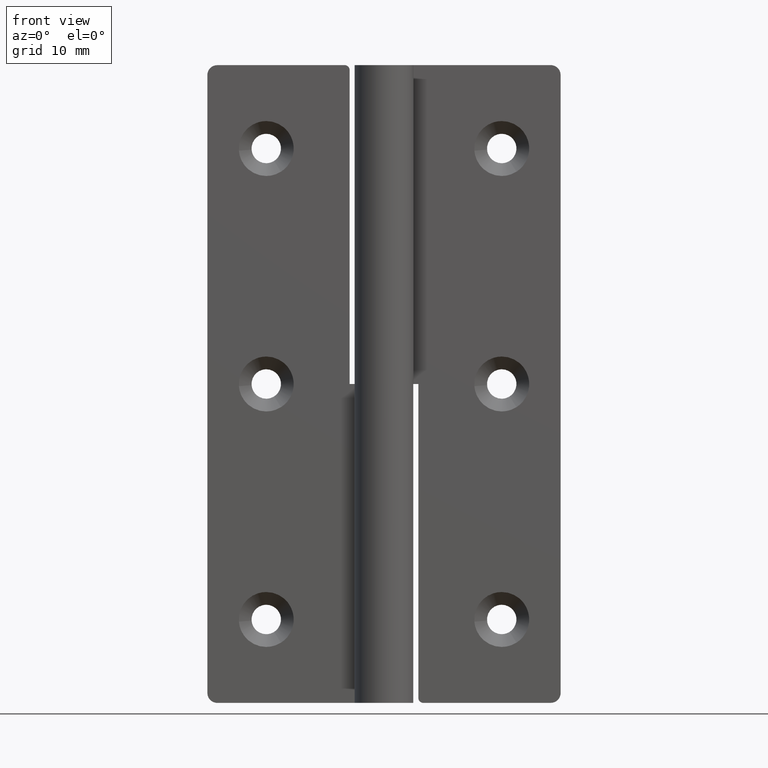
[diagram: clean part render]
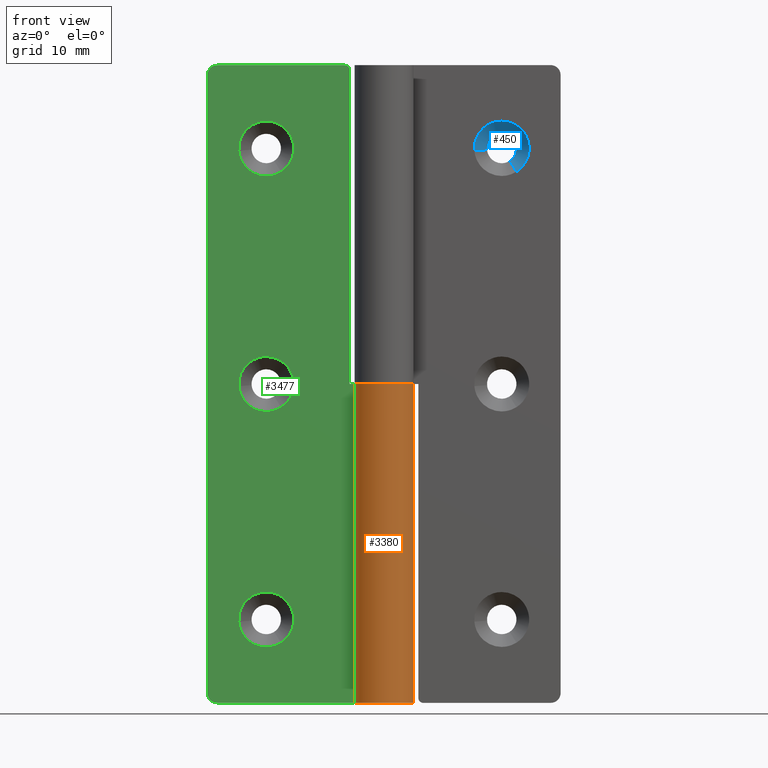
[diagram: same view with three faces highlighted in distinct colors, each labeled with its STEP entity id]
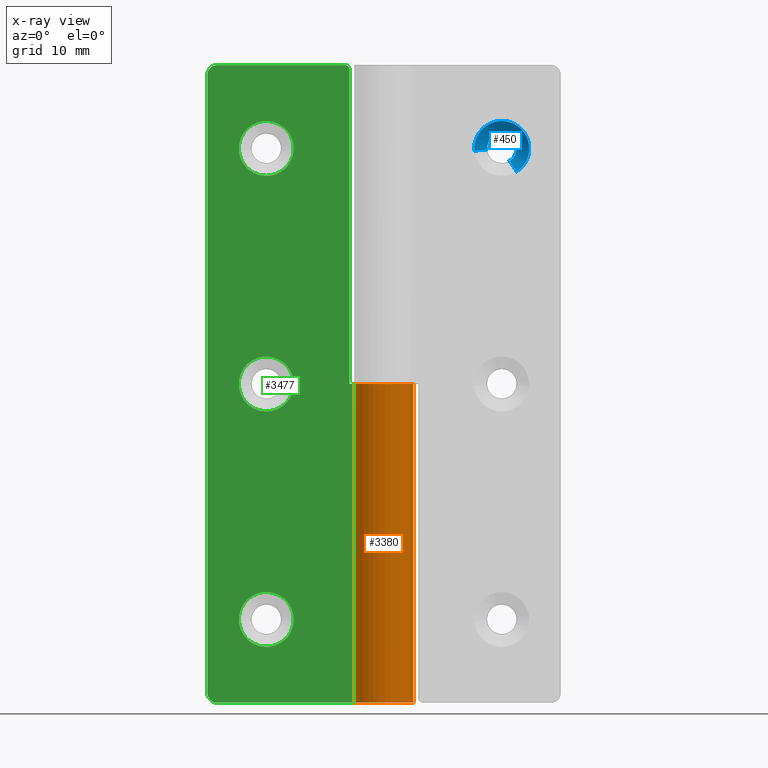
[diagram: x-ray of the same camera — body ghosted, the three highlighted faces saturated]
A machine part, front view with three faces highlighted in distinct colors.
The next image is the same camera in x-ray (body ghosted, the three faces saturated) — at least one of them is partly hidden behind the body in this view.
Their STEP definitions:

[orange] entity #3380 — the highlighted face is a freeform B-spline surface patch.
#3055=CARTESIAN_POINT('',(-2.626308055046285,1.450000000000000,32.500000000000000));
#3056=VERTEX_POINT('',#3055);
#3062=CARTESIAN_POINT('',(0.0,3.0,32.500000000000000));
#3063=VERTEX_POINT('',#3062);
#3064=CARTESIAN_POINT('',(0.0,3.0,32.500000000000000));
#3065=CARTESIAN_POINT('',(2.290597388138798,3.000000646862393,32.500000000000007));
#3066=CARTESIAN_POINT('',(2.894027959728419,0.790315417176416,32.500000000000000));
#3067=CARTESIAN_POINT('',(3.497458531318040,-1.419369812509560,32.500000000000007));
#3068=CARTESIAN_POINT('',(1.524794322195784,-2.583600915660028,32.500000000000000));
#3069=CARTESIAN_POINT('',(-0.447869886926470,-3.747832018810494,32.500000000000007));
#3070=CARTESIAN_POINT('',(-2.090650190973659,-2.151552395604616,32.500000000000000));
#3071=CARTESIAN_POINT('',(-3.733430495020849,-0.555272772398737,32.500000000000007));
#3072=CARTESIAN_POINT('',(-2.626308055046285,1.450000000000000,32.500000000000000));
#3080=(BOUNDED_CURVE()B_SPLINE_CURVE(2,(#3064,#3065,#3066,#3067,#3068,#3069,#3070,#3071,#3072),.UNSPECIFIED.,.F.,.U.)B_SPLINE_CURVE_WITH_KNOTS((3,2,2,2,3),(0.0,0.250000000000000,0.500000000000000,0.750000000000000,1.0),.UNSPECIFIED.)CURVE()GEOMETRIC_REPRESENTATION_ITEM()RATIONAL_B_SPLINE_CURVE((1.0,0.794807548154990,1.0,0.794807548154990,1.0,0.794807548154990,1.0,0.794807548154990,1.0))REPRESENTATION_ITEM(''));
#3081=EDGE_CURVE('',#3063,#3056,#3080,.T.);
#3311=CARTESIAN_POINT('',(-2.626308055046285,1.450000000000000,0.0));
#3312=VERTEX_POINT('',#3311);
#3313=CARTESIAN_POINT('',(-2.626308055046285,1.450000000000000,0.0));
#3314=CARTESIAN_POINT('',(-2.626308055046285,1.450000000000000,32.500000000000000));
#3315=QUASI_UNIFORM_CURVE('',1,(#3313,#3314),.UNSPECIFIED.,.F.,.U.);
#3316=EDGE_CURVE('',#3312,#3056,#3315,.T.);
#3328=CARTESIAN_POINT('',(-0.026179597768584,2.999884769230590,-0.812500000000001));
#3329=CARTESIAN_POINT('',(-0.026179597768584,2.999884769230590,33.332812500000003));
#3330=CARTESIAN_POINT('',(3.591479420233541,3.031455601192738,-0.812500000000001));
#3331=CARTESIAN_POINT('',(3.591479420233541,3.031455601192738,33.332812499999996));
#3332=CARTESIAN_POINT('',(2.952894411097322,-0.529536209254089,-0.812500000000001));
#3333=CARTESIAN_POINT('',(2.952894411097322,-0.529536209254089,33.332812500000003));
#3334=CARTESIAN_POINT('',(2.314309401961106,-4.090528019700916,-0.812500000000001));
#3335=CARTESIAN_POINT('',(2.314309401961106,-4.090528019700916,33.332812499999996));
#3336=CARTESIAN_POINT('',(-1.066951929793866,-2.803855841428039,-0.812500000000001));
#3337=CARTESIAN_POINT('',(-1.066951929793866,-2.803855841428039,33.332812500000003));
#3338=CARTESIAN_POINT('',(-4.448213261548839,-1.517183663155162,-0.812500000000001));
#3339=CARTESIAN_POINT('',(-4.448213261548839,-1.517183663155162,33.332812499999996));
#3340=CARTESIAN_POINT('',(-2.557919640422113,1.567495171649279,-0.812500000000001));
#3341=CARTESIAN_POINT('',(-2.557919640422113,1.567495171649279,33.332812500000003));
#3349=(BOUNDED_SURFACE()B_SPLINE_SURFACE(1,2,((#3328,#3330,#3332,#3334,#3336,#3338,#3340),(#3329,#3331,#3333,#3335,#3337,#3339,#3341)),.UNSPECIFIED.,.F.,.F.,.U.)B_SPLINE_SURFACE_WITH_KNOTS((2,2),(3,2,2,3),(0.0,34.145312500000010),(0.0,5.638244632744899,11.276489265489801,16.914733898234690),.UNSPECIFIED.)GEOMETRIC_REPRESENTATION_ITEM()RATIONAL_B_SPLINE_SURFACE(((1.0,0.638320090924328,1.0,0.638320090924328,1.0,0.638320090924328,1.0),(1.0,0.638320090924328,1.0,0.638320090924328,1.0,0.638320090924328,1.0)))REPRESENTATION_ITEM('')SURFACE());
#3350=CARTESIAN_POINT('',(0.0,3.0,0.0));
#3351=VERTEX_POINT('',#3350);
#3352=CARTESIAN_POINT('',(0.0,3.0,0.0));
#3353=CARTESIAN_POINT('',(0.0,3.0,32.500000000000000));
#3354=QUASI_UNIFORM_CURVE('',1,(#3352,#3353),.UNSPECIFIED.,.F.,.U.);
#3355=EDGE_CURVE('',#3351,#3063,#3354,.T.);
#3356=ORIENTED_EDGE('',*,*,#3355,.T.);
#3357=ORIENTED_EDGE('',*,*,#3081,.T.);
#3358=ORIENTED_EDGE('',*,*,#3316,.F.);
#3359=CARTESIAN_POINT('',(0.0,3.0,0.0));
#3360=CARTESIAN_POINT('',(2.290597388138794,3.000000646862389,0.0));
#3361=CARTESIAN_POINT('',(2.894027959728418,0.790315417176417,0.0));
#3362=CARTESIAN_POINT('',(3.497458531318041,-1.419369812509558,0.0));
#3363=CARTESIAN_POINT('',(1.524794322195787,-2.583600915660025,0.0));
#3364=CARTESIAN_POINT('',(-0.447869886926467,-3.747832018810492,0.0));
#3365=CARTESIAN_POINT('',(-2.090650190973657,-2.151552395604612,0.0));
#3366=CARTESIAN_POINT('',(-3.733430495020845,-0.555272772398734,0.0));
#3367=CARTESIAN_POINT('',(-2.626308055046285,1.450000000000000,0.0));
#3375=(BOUNDED_CURVE()B_SPLINE_CURVE(2,(#3359,#3360,#3361,#3362,#3363,#3364,#3365,#3366,#3367),.UNSPECIFIED.,.F.,.U.)B_SPLINE_CURVE_WITH_KNOTS((3,2,2,2,3),(0.0,0.250000000000000,0.500000000000000,0.750000000000000,1.0),.UNSPECIFIED.)CURVE()GEOMETRIC_REPRESENTATION_ITEM()RATIONAL_B_SPLINE_CURVE((1.0,0.794807548154990,1.0,0.794807548154990,1.0,0.794807548154990,1.0,0.794807548154990,1.0))REPRESENTATION_ITEM(''));
#3376=EDGE_CURVE('',#3351,#3312,#3375,.T.);
#3377=ORIENTED_EDGE('',*,*,#3376,.F.);
#3378=EDGE_LOOP('',(#3356,#3357,#3358,#3377));
#3379=FACE_OUTER_BOUND('',#3378,.T.);
#3380=ADVANCED_FACE('',(#3379),#3349,.T.);

[blue] entity #450 — the highlighted face is a freeform B-spline surface patch.
#314=CARTESIAN_POINT('',(12.789296039222011,2.832500012218953,55.262838728542732));
#315=CARTESIAN_POINT('',(13.532107303791166,2.832500012218953,55.736744598812450));
#316=CARTESIAN_POINT('',(13.462976186956260,2.832500012218953,56.615138722957226));
#317=CARTESIAN_POINT('',(13.347837463999028,2.832500012218954,58.078114909913495));
#318=CARTESIAN_POINT('',(11.884861277042770,2.832500012218953,57.962976186956261));
#319=CARTESIAN_POINT('',(10.421885090086510,2.832500012218954,57.847837463999035));
#320=CARTESIAN_POINT('',(10.537023813043740,2.832500012218953,56.384861277042774));
#321=CARTESIAN_POINT('',(13.523899382782032,1.466687499694526,54.111404081244530));
#322=CARTESIAN_POINT('',(14.958050286055572,1.466687499694526,55.026377459183465));
#323=CARTESIAN_POINT('',(14.824578355321460,1.466687499694526,56.722299137623672));
#324=CARTESIAN_POINT('',(14.602279217697788,1.466687499694527,59.546877492945136));
#325=CARTESIAN_POINT('',(11.777700862376330,1.466687499694526,59.324578355321457));
#326=CARTESIAN_POINT('',(8.953122507054868,1.466687499694527,59.102279217697784));
#327=CARTESIAN_POINT('',(9.175421644678542,1.466687499694526,56.277700862376328));
#335=(BOUNDED_SURFACE()B_SPLINE_SURFACE(2,1,((#314,#321),(#315,#322),(#316,#323),(#317,#324),(#318,#325),(#319,#326),(#320,#327)),.UNSPECIFIED.,.F.,.F.,.U.)B_SPLINE_SURFACE_WITH_KNOTS((3,2,2,3),(2,2),(0.0,3.192182395695130,7.886568271717382,12.580954147739630),(0.0,1.0),.UNSPECIFIED.)GEOMETRIC_REPRESENTATION_ITEM()RATIONAL_B_SPLINE_SURFACE(((0.872532871172386,0.872532871172386),(0.800832611206852,0.800832611206852),(1.0,1.0),(0.707106781186548,0.707106781186548),(1.0,1.0),(0.707106781186548,0.707106781186548),(1.0,1.0)))REPRESENTATION_ITEM('')SURFACE());
#336=CARTESIAN_POINT('',(13.489514289519180,2.800000011920930,56.677051352206547));
#337=VERTEX_POINT('',#336);
#338=CARTESIAN_POINT('',(12.806776190298001,2.800000011913452,55.235439926776642));
#339=VERTEX_POINT('',#338);
#340=CARTESIAN_POINT('',(13.489514289519180,2.800000011920930,56.677051352206547));
#341=CARTESIAN_POINT('',(13.500000000000002,2.800000011920930,56.588836179701623));
#342=CARTESIAN_POINT('',(13.500000000000000,2.800000011920930,56.500000000000000));
#343=CARTESIAN_POINT('',(13.500000000000004,2.800000011920929,55.677709516170253));
#344=CARTESIAN_POINT('',(12.806776190298001,2.800000011913451,55.235439926776642));
#352=(BOUNDED_CURVE()B_SPLINE_CURVE(2,(#340,#341,#342,#343,#344),.UNSPECIFIED.,.F.,.U.)B_SPLINE_CURVE_WITH_KNOTS((3,2,3),(0.229562473465401,0.250000000000000,0.407950112597462),.UNSPECIFIED.)CURVE()GEOMETRIC_REPRESENTATION_ITEM()RATIONAL_B_SPLINE_CURVE((0.956026754089407,0.976055948274784,1.0,0.814949932437528,0.863729296936340))REPRESENTATION_ITEM(''));
#353=EDGE_CURVE('',#337,#339,#352,.T.);
#354=ORIENTED_EDGE('',*,*,#353,.T.);
#355=CARTESIAN_POINT('',(13.505982228261910,1.499999999987748,54.139487853243480));
#356=VERTEX_POINT('',#355);
#357=CARTESIAN_POINT('',(12.806776190298001,2.800000011913452,55.235439926776642));
#358=CARTESIAN_POINT('',(13.505982228261910,1.499999999987748,54.139487853243480));
#359=QUASI_UNIFORM_CURVE('',1,(#357,#358),.UNSPECIFIED.,.F.,.U.);
#360=EDGE_CURVE('',#339,#356,#359,.T.);
#361=ORIENTED_EDGE('',*,*,#360,.T.);
#362=CARTESIAN_POINT('',(12.0,1.500000000000000,59.300000011920929));
#363=VERTEX_POINT('',#362);
#364=CARTESIAN_POINT('',(12.0,1.500000000000000,59.300000011920929));
#365=CARTESIAN_POINT('',(14.800000011920924,1.500000000000000,59.300000011920943));
#366=CARTESIAN_POINT('',(14.800000011920931,1.500000000000000,56.500000000000000));
#367=CARTESIAN_POINT('',(14.800000011920933,1.500000000000000,54.965057756923521));
#368=CARTESIAN_POINT('',(13.505982228261917,1.499999999987747,54.139487853243480));
#376=(BOUNDED_CURVE()B_SPLINE_CURVE(2,(#364,#365,#366,#367,#368),.UNSPECIFIED.,.F.,.U.)B_SPLINE_CURVE_WITH_KNOTS((3,2,3),(0.0,0.250000000000000,0.407950112602438),.UNSPECIFIED.)CURVE()GEOMETRIC_REPRESENTATION_ITEM()RATIONAL_B_SPLINE_CURVE((1.0,0.707106781186548,1.0,0.814949932431699,0.863729296939413))REPRESENTATION_ITEM(''));
#377=EDGE_CURVE('',#363,#356,#376,.T.);
#378=ORIENTED_EDGE('',*,*,#377,.F.);
#379=CARTESIAN_POINT('',(9.208631453642509,1.499999999947907,56.280314530623897));
#380=VERTEX_POINT('',#379);
#381=CARTESIAN_POINT('',(9.208631453642509,1.499999999947906,56.280314530623897));
#382=CARTESIAN_POINT('',(9.199999988079071,1.500000000000000,56.389987699509554));
#383=CARTESIAN_POINT('',(9.199999988079071,1.500000000000000,56.500000000000000));
#384=CARTESIAN_POINT('',(9.199999988079071,1.500000000000000,59.300000011920943));
#385=CARTESIAN_POINT('',(12.0,1.500000000000000,59.300000011920929));
#393=(BOUNDED_CURVE()B_SPLINE_CURVE(2,(#381,#382,#383,#384,#385),.UNSPECIFIED.,.F.,.U.)B_SPLINE_CURVE_WITH_KNOTS((3,2,3),(0.736331300583792,0.750000000000000,1.0),.UNSPECIFIED.)CURVE()GEOMETRIC_REPRESENTATION_ITEM()RATIONAL_B_SPLINE_CURVE((0.969723356069608,0.983986122523973,1.0,0.707106781186548,1.0))REPRESENTATION_ITEM(''));
#394=EDGE_CURVE('',#380,#363,#393,.T.);
#395=ORIENTED_EDGE('',*,*,#394,.F.);
#396=CARTESIAN_POINT('',(10.504623999345091,2.800000011783319,56.382311355355903));
#397=VERTEX_POINT('',#396);
#398=CARTESIAN_POINT('',(10.504623999345091,2.800000011783319,56.382311355355903));
#399=CARTESIAN_POINT('',(9.208631453642509,1.499999999947907,56.280314530623897));
#400=QUASI_UNIFORM_CURVE('',1,(#398,#399),.UNSPECIFIED.,.F.,.U.);
#401=EDGE_CURVE('',#397,#380,#400,.T.);
#402=ORIENTED_EDGE('',*,*,#401,.F.);
#403=CARTESIAN_POINT('',(10.502797802390299,2.800000011920930,56.408427190320097));
#404=VERTEX_POINT('',#403);
#405=CARTESIAN_POINT('',(10.504623999345094,2.800000011783319,56.382311355355895));
#406=CARTESIAN_POINT('',(10.503596946260677,2.800000011920931,56.395361303642858));
#407=CARTESIAN_POINT('',(10.502797802390296,2.800000011920930,56.408427190320104));
#415=(BOUNDED_CURVE()B_SPLINE_CURVE(2,(#405,#406,#407),.UNSPECIFIED.,.F.,.U.)B_SPLINE_CURVE_WITH_KNOTS((3,3),(0.736331300393971,0.739332962154930),.UNSPECIFIED.)CURVE()GEOMETRIC_REPRESENTATION_ITEM()RATIONAL_B_SPLINE_CURVE((0.969723355673466,0.972855475218637,0.976072041486663))REPRESENTATION_ITEM(''));
#416=EDGE_CURVE('',#397,#404,#415,.T.);
#417=ORIENTED_EDGE('',*,*,#416,.T.);
#418=CARTESIAN_POINT('',(12.0,2.800000011920930,58.0));
#419=VERTEX_POINT('',#418);
#420=CARTESIAN_POINT('',(10.502797802390294,2.800000011920930,56.408427190320097));
#421=CARTESIAN_POINT('',(10.500000000000005,2.800000011920930,56.454170854673436));
#422=CARTESIAN_POINT('',(10.500000000000000,2.800000011920930,56.500000000000000));
#423=CARTESIAN_POINT('',(10.500000000000002,2.800000011920930,58.0));
#424=CARTESIAN_POINT('',(12.0,2.800000011920930,58.0));
#432=(BOUNDED_CURVE()B_SPLINE_CURVE(2,(#420,#421,#422,#423,#424),.UNSPECIFIED.,.F.,.U.)B_SPLINE_CURVE_WITH_KNOTS((3,2,3),(0.739332962154930,0.750000000000000,1.0),.UNSPECIFIED.)CURVE()GEOMETRIC_REPRESENTATION_ITEM()RATIONAL_B_SPLINE_CURVE((0.976072041486662,0.987502787801410,1.0,0.707106781186548,1.0))REPRESENTATION_ITEM(''));
#433=EDGE_CURVE('',#404,#419,#432,.T.);
#434=ORIENTED_EDGE('',*,*,#433,.T.);
#435=CARTESIAN_POINT('',(12.0,2.800000011920930,58.0));
#436=CARTESIAN_POINT('',(13.332261788528189,2.800000011920930,57.999999999999993));
#437=CARTESIAN_POINT('',(13.489514289519184,2.800000011920930,56.677051352206547));
#445=(BOUNDED_CURVE()B_SPLINE_CURVE(2,(#435,#436,#437),.UNSPECIFIED.,.F.,.U.)B_SPLINE_CURVE_WITH_KNOTS((3,3),(0.0,0.229562473465401),.UNSPECIFIED.)CURVE()GEOMETRIC_REPRESENTATION_ITEM()RATIONAL_B_SPLINE_CURVE((1.0,0.731050832911764,0.956026754089406))REPRESENTATION_ITEM(''));
#446=EDGE_CURVE('',#419,#337,#445,.T.);
#447=ORIENTED_EDGE('',*,*,#446,.T.);
#448=EDGE_LOOP('',(#354,#361,#378,#395,#402,#417,#434,#447));
#449=FACE_OUTER_BOUND('',#448,.T.);
#450=ADVANCED_FACE('',(#449),#335,.F.);

[green] entity #3477 — the highlighted face is a freeform B-spline surface patch.
#1975=CARTESIAN_POINT('',(-10.494017771738090,1.499999999987748,54.139487853243473));
#1976=VERTEX_POINT('',#1975);
#1982=CARTESIAN_POINT('',(-12.0,1.500000000000000,59.300000011920929));
#1983=VERTEX_POINT('',#1982);
#1984=CARTESIAN_POINT('',(-12.0,1.500000000000000,59.300000011920929));
#1985=CARTESIAN_POINT('',(-9.199999988079071,1.500000000000000,59.300000011920943));
#1986=CARTESIAN_POINT('',(-9.199999988079071,1.500000000000000,56.500000000000000));
#1987=CARTESIAN_POINT('',(-9.199999988079071,1.500000000000000,54.965057756923521));
#1988=CARTESIAN_POINT('',(-10.494017771738088,1.499999999987747,54.139487853243466));
#1996=(BOUNDED_CURVE()B_SPLINE_CURVE(2,(#1984,#1985,#1986,#1987,#1988),.UNSPECIFIED.,.F.,.U.)B_SPLINE_CURVE_WITH_KNOTS((3,2,3),(0.0,0.250000000000000,0.407950112602438),.UNSPECIFIED.)CURVE()GEOMETRIC_REPRESENTATION_ITEM()RATIONAL_B_SPLINE_CURVE((1.0,0.707106781186548,1.0,0.814949932431699,0.863729296939413))REPRESENTATION_ITEM(''));
#1997=EDGE_CURVE('',#1983,#1976,#1996,.T.);
#1999=CARTESIAN_POINT('',(-14.791368546357489,1.499999999947906,56.280314530623890));
#2000=VERTEX_POINT('',#1999);
#2001=CARTESIAN_POINT('',(-14.791368546357495,1.499999999947907,56.280314530623890));
#2002=CARTESIAN_POINT('',(-14.800000011920929,1.500000000000000,56.389987699509554));
#2003=CARTESIAN_POINT('',(-14.800000011920931,1.500000000000000,56.500000000000000));
#2004=CARTESIAN_POINT('',(-14.800000011920924,1.500000000000000,59.300000011920943));
#2005=CARTESIAN_POINT('',(-12.0,1.500000000000000,59.300000011920929));
#2013=(BOUNDED_CURVE()B_SPLINE_CURVE(2,(#2001,#2002,#2003,#2004,#2005),.UNSPECIFIED.,.F.,.U.)B_SPLINE_CURVE_WITH_KNOTS((3,2,3),(0.736331300583791,0.750000000000000,1.0),.UNSPECIFIED.)CURVE()GEOMETRIC_REPRESENTATION_ITEM()RATIONAL_B_SPLINE_CURVE((0.969723356069606,0.983986122523972,1.0,0.707106781186548,1.0))REPRESENTATION_ITEM(''));
#2014=EDGE_CURVE('',#2000,#1983,#2013,.T.);
#2118=CARTESIAN_POINT('',(-12.0,1.500000000000000,53.699999988079078));
#2119=VERTEX_POINT('',#2118);
#2120=CARTESIAN_POINT('',(-12.0,1.500000000000000,53.699999988079078));
#2121=CARTESIAN_POINT('',(-14.588293386920791,1.500000000000000,53.699999988079064));
#2122=CARTESIAN_POINT('',(-14.791368546357486,1.499999999947907,56.280314530623890));
#2130=(BOUNDED_CURVE()B_SPLINE_CURVE(2,(#2120,#2121,#2122),.UNSPECIFIED.,.F.,.U.)B_SPLINE_CURVE_WITH_KNOTS((3,3),(0.500000000000000,0.736331300583790),.UNSPECIFIED.)CURVE()GEOMETRIC_REPRESENTATION_ITEM()RATIONAL_B_SPLINE_CURVE((1.0,0.723120658662577,0.969723356069604))REPRESENTATION_ITEM(''));
#2131=EDGE_CURVE('',#2119,#2000,#2130,.T.);
#2133=CARTESIAN_POINT('',(-10.494017771738088,1.499999999987747,54.139487853243466));
#2134=CARTESIAN_POINT('',(-11.182881441209132,1.500000000000001,53.699999988079078));
#2135=CARTESIAN_POINT('',(-12.0,1.500000000000000,53.699999988079078));
#2143=(BOUNDED_CURVE()B_SPLINE_CURVE(2,(#2133,#2134,#2135),.UNSPECIFIED.,.F.,.U.)B_SPLINE_CURVE_WITH_KNOTS((3,3),(0.407950112602438,0.500000000000000),.UNSPECIFIED.)CURVE()GEOMETRIC_REPRESENTATION_ITEM()RATIONAL_B_SPLINE_CURVE((0.863729296939413,0.892156848754848,1.0))REPRESENTATION_ITEM(''));
#2144=EDGE_CURVE('',#1976,#2119,#2143,.T.);
#2319=CARTESIAN_POINT('',(-10.494017771738090,1.499999999987746,30.139487853243470));
#2320=VERTEX_POINT('',#2319);
#2326=CARTESIAN_POINT('',(-12.0,1.500000000000000,35.300000011920943));
#2327=VERTEX_POINT('',#2326);
#2328=CARTESIAN_POINT('',(-12.0,1.500000000000000,35.300000011920943));
#2329=CARTESIAN_POINT('',(-9.199999988079071,1.500000000000000,35.300000011920929));
#2330=CARTESIAN_POINT('',(-9.199999988079071,1.500000000000000,32.500000000000000));
#2331=CARTESIAN_POINT('',(-9.199999988079071,1.500000000000000,30.965057756923510));
#2332=CARTESIAN_POINT('',(-10.494017771738088,1.499999999987746,30.139487853243462));
#2340=(BOUNDED_CURVE()B_SPLINE_CURVE(2,(#2328,#2329,#2330,#2331,#2332),.UNSPECIFIED.,.F.,.U.)B_SPLINE_CURVE_WITH_KNOTS((3,2,3),(0.0,0.250000000000000,0.407950112602438),.UNSPECIFIED.)CURVE()GEOMETRIC_REPRESENTATION_ITEM()RATIONAL_B_SPLINE_CURVE((1.0,0.707106781186548,1.0,0.814949932431699,0.863729296939413))REPRESENTATION_ITEM(''));
#2341=EDGE_CURVE('',#2327,#2320,#2340,.T.);
#2343=CARTESIAN_POINT('',(-14.791368546357489,1.499999999947906,32.280314530623890));
#2344=VERTEX_POINT('',#2343);
#2345=CARTESIAN_POINT('',(-14.791368546357491,1.499999999947906,32.280314530623890));
#2346=CARTESIAN_POINT('',(-14.800000011920927,1.500000000000000,32.389987699509540));
#2347=CARTESIAN_POINT('',(-14.800000011920931,1.500000000000000,32.500000000000000));
#2348=CARTESIAN_POINT('',(-14.800000011920924,1.500000000000000,35.300000011920929));
#2349=CARTESIAN_POINT('',(-12.0,1.500000000000000,35.300000011920943));
#2357=(BOUNDED_CURVE()B_SPLINE_CURVE(2,(#2345,#2346,#2347,#2348,#2349),.UNSPECIFIED.,.F.,.U.)B_SPLINE_CURVE_WITH_KNOTS((3,2,3),(0.736331300583791,0.750000000000000,1.0),.UNSPECIFIED.)CURVE()GEOMETRIC_REPRESENTATION_ITEM()RATIONAL_B_SPLINE_CURVE((0.969723356069606,0.983986122523972,1.0,0.707106781186548,1.0))REPRESENTATION_ITEM(''));
#2358=EDGE_CURVE('',#2344,#2327,#2357,.T.);
#2462=CARTESIAN_POINT('',(-12.0,1.500000000000000,29.699999988079071));
#2463=VERTEX_POINT('',#2462);
#2464=CARTESIAN_POINT('',(-12.0,1.500000000000000,29.699999988079071));
#2465=CARTESIAN_POINT('',(-14.588293386920826,1.500000000000000,29.699999988079064));
#2466=CARTESIAN_POINT('',(-14.791368546357491,1.499999999947906,32.280314530623890));
#2474=(BOUNDED_CURVE()B_SPLINE_CURVE(2,(#2464,#2465,#2466),.UNSPECIFIED.,.F.,.U.)B_SPLINE_CURVE_WITH_KNOTS((3,3),(0.500000000000000,0.736331300583792),.UNSPECIFIED.)CURVE()GEOMETRIC_REPRESENTATION_ITEM()RATIONAL_B_SPLINE_CURVE((1.0,0.723120658662575,0.969723356069608))REPRESENTATION_ITEM(''));
#2475=EDGE_CURVE('',#2463,#2344,#2474,.T.);
#2477=CARTESIAN_POINT('',(-10.494017771738088,1.499999999987746,30.139487853243462));
#2478=CARTESIAN_POINT('',(-11.182881441209130,1.500000000000001,29.699999988079075));
#2479=CARTESIAN_POINT('',(-12.0,1.500000000000000,29.699999988079071));
#2487=(BOUNDED_CURVE()B_SPLINE_CURVE(2,(#2477,#2478,#2479),.UNSPECIFIED.,.F.,.U.)B_SPLINE_CURVE_WITH_KNOTS((3,3),(0.407950112602438,0.500000000000000),.UNSPECIFIED.)CURVE()GEOMETRIC_REPRESENTATION_ITEM()RATIONAL_B_SPLINE_CURVE((0.863729296939413,0.892156848754848,1.0))REPRESENTATION_ITEM(''));
#2488=EDGE_CURVE('',#2320,#2463,#2487,.T.);
#2663=CARTESIAN_POINT('',(-10.494017771738090,1.499999999987748,6.139487853243372));
#2664=VERTEX_POINT('',#2663);
#2670=CARTESIAN_POINT('',(-12.0,1.500000000000000,11.300000011920829));
#2671=VERTEX_POINT('',#2670);
#2672=CARTESIAN_POINT('',(-12.0,1.500000000000000,11.300000011920829));
#2673=CARTESIAN_POINT('',(-9.199999988079071,1.500000000000000,11.300000011920828));
#2674=CARTESIAN_POINT('',(-9.199999988079071,1.500000000000000,8.499999999999901));
#2675=CARTESIAN_POINT('',(-9.199999988079071,1.500000000000000,6.965057756923418));
#2676=CARTESIAN_POINT('',(-10.494017771738090,1.499999999987747,6.139487853243371));
#2684=(BOUNDED_CURVE()B_SPLINE_CURVE(2,(#2672,#2673,#2674,#2675,#2676),.UNSPECIFIED.,.F.,.U.)B_SPLINE_CURVE_WITH_KNOTS((3,2,3),(0.0,0.250000000000000,0.407950112602438),.UNSPECIFIED.)CURVE()GEOMETRIC_REPRESENTATION_ITEM()RATIONAL_B_SPLINE_CURVE((1.0,0.707106781186548,1.0,0.814949932431699,0.863729296939413))REPRESENTATION_ITEM(''));
#2685=EDGE_CURVE('',#2671,#2664,#2684,.T.);
#2687=CARTESIAN_POINT('',(-14.791368546357489,1.499999999947906,8.280314530623793));
#2688=VERTEX_POINT('',#2687);
#2689=CARTESIAN_POINT('',(-14.791368546357496,1.499999999947906,8.280314530623793));
#2690=CARTESIAN_POINT('',(-14.800000011920931,1.500000000000000,8.389987699509451));
#2691=CARTESIAN_POINT('',(-14.800000011920931,1.500000000000000,8.499999999999901));
#2692=CARTESIAN_POINT('',(-14.800000011920924,1.500000000000000,11.300000011920828));
#2693=CARTESIAN_POINT('',(-12.0,1.500000000000000,11.300000011920829));
#2701=(BOUNDED_CURVE()B_SPLINE_CURVE(2,(#2689,#2690,#2691,#2692,#2693),.UNSPECIFIED.,.F.,.U.)B_SPLINE_CURVE_WITH_KNOTS((3,2,3),(0.736331300583791,0.750000000000000,1.0),.UNSPECIFIED.)CURVE()GEOMETRIC_REPRESENTATION_ITEM()RATIONAL_B_SPLINE_CURVE((0.969723356069606,0.983986122523972,1.0,0.707106781186548,1.0))REPRESENTATION_ITEM(''));
#2702=EDGE_CURVE('',#2688,#2671,#2701,.T.);
#2806=CARTESIAN_POINT('',(-12.0,1.500000000000000,5.699999988078970));
#2807=VERTEX_POINT('',#2806);
#2808=CARTESIAN_POINT('',(-12.0,1.500000000000000,5.699999988078970));
#2809=CARTESIAN_POINT('',(-14.588293386920791,1.500000000000000,5.699999988078969));
#2810=CARTESIAN_POINT('',(-14.791368546357496,1.499999999947906,8.280314530623793));
#2818=(BOUNDED_CURVE()B_SPLINE_CURVE(2,(#2808,#2809,#2810),.UNSPECIFIED.,.F.,.U.)B_SPLINE_CURVE_WITH_KNOTS((3,3),(0.500000000000000,0.736331300583790),.UNSPECIFIED.)CURVE()GEOMETRIC_REPRESENTATION_ITEM()RATIONAL_B_SPLINE_CURVE((1.0,0.723120658662577,0.969723356069604))REPRESENTATION_ITEM(''));
#2819=EDGE_CURVE('',#2807,#2688,#2818,.T.);
#2821=CARTESIAN_POINT('',(-10.494017771738090,1.499999999987747,6.139487853243371));
#2822=CARTESIAN_POINT('',(-11.182881441209132,1.500000000000000,5.699999988078970));
#2823=CARTESIAN_POINT('',(-12.0,1.500000000000000,5.699999988078970));
#2831=(BOUNDED_CURVE()B_SPLINE_CURVE(2,(#2821,#2822,#2823),.UNSPECIFIED.,.F.,.U.)B_SPLINE_CURVE_WITH_KNOTS((3,3),(0.407950112602438,0.500000000000000),.UNSPECIFIED.)CURVE()GEOMETRIC_REPRESENTATION_ITEM()RATIONAL_B_SPLINE_CURVE((0.863729296939413,0.892156848754849,1.0))REPRESENTATION_ITEM(''));
#2832=EDGE_CURVE('',#2664,#2807,#2831,.T.);
#2980=CARTESIAN_POINT('',(-3.500000000000000,1.500000000000000,64.500000000000000));
#2981=VERTEX_POINT('',#2980);
#2982=CARTESIAN_POINT('',(-4.0,1.500000000000055,65.0));
#2983=VERTEX_POINT('',#2982);
#2984=CARTESIAN_POINT('',(-3.500000000000000,1.500000000000055,64.500000000000000));
#2985=CARTESIAN_POINT('',(-3.499999999999999,1.500000000000055,65.0));
#2986=CARTESIAN_POINT('',(-4.0,1.500000000000055,65.0));
#2994=(BOUNDED_CURVE()B_SPLINE_CURVE(2,(#2984,#2985,#2986),.UNSPECIFIED.,.F.,.U.)CURVE()GEOMETRIC_REPRESENTATION_ITEM()QUASI_UNIFORM_CURVE()RATIONAL_B_SPLINE_CURVE((1.0,0.707106781186548,1.0))REPRESENTATION_ITEM(''));
#2995=EDGE_CURVE('',#2981,#2983,#2994,.T.);
#3032=CARTESIAN_POINT('',(-5.742883E-016,1.500000000000000,32.500000000000000));
#3033=VERTEX_POINT('',#3032);
#3090=CARTESIAN_POINT('',(-3.500000000000000,1.499999999999946,32.500000000000000));
#3091=VERTEX_POINT('',#3090);
#3097=CARTESIAN_POINT('',(-5.742883E-016,1.500000000000000,32.500000000000000));
#3098=CARTESIAN_POINT('',(-3.500000000000000,1.499999999999946,32.500000000000000));
#3099=QUASI_UNIFORM_CURVE('',1,(#3097,#3098),.UNSPECIFIED.,.F.,.U.);
#3100=EDGE_CURVE('',#3033,#3091,#3099,.T.);
#3116=CARTESIAN_POINT('',(-3.500000000000000,1.499999999999946,32.500000000000000));
#3117=CARTESIAN_POINT('',(-3.500000000000000,1.500000000000000,64.500000000000000));
#3118=QUASI_UNIFORM_CURVE('',1,(#3116,#3117),.UNSPECIFIED.,.F.,.U.);
#3119=EDGE_CURVE('',#3091,#2981,#3118,.T.);
#3139=CARTESIAN_POINT('',(-17.0,1.500000000000000,65.0));
#3140=VERTEX_POINT('',#3139);
#3141=CARTESIAN_POINT('',(-18.0,1.500000000000055,64.0));
#3142=VERTEX_POINT('',#3141);
#3143=CARTESIAN_POINT('',(-17.0,1.500000000000055,65.0));
#3144=CARTESIAN_POINT('',(-18.000000000000007,1.500000000000055,65.0));
#3145=CARTESIAN_POINT('',(-18.0,1.500000000000055,64.0));
#3153=(BOUNDED_CURVE()B_SPLINE_CURVE(2,(#3143,#3144,#3145),.UNSPECIFIED.,.F.,.U.)CURVE()GEOMETRIC_REPRESENTATION_ITEM()QUASI_UNIFORM_CURVE()RATIONAL_B_SPLINE_CURVE((1.0,0.707106781186548,1.0))REPRESENTATION_ITEM(''));
#3154=EDGE_CURVE('',#3140,#3142,#3153,.T.);
#3200=CARTESIAN_POINT('',(-18.0,1.500000000000055,1.0));
#3201=VERTEX_POINT('',#3200);
#3202=CARTESIAN_POINT('',(-17.0,1.500000000000055,0.0));
#3203=VERTEX_POINT('',#3202);
#3204=CARTESIAN_POINT('',(-18.0,1.500000000000055,1.0));
#3205=CARTESIAN_POINT('',(-18.000000000000007,1.500000000000055,0.0));
#3206=CARTESIAN_POINT('',(-17.0,1.500000000000055,0.0));
#3214=(BOUNDED_CURVE()B_SPLINE_CURVE(2,(#3204,#3205,#3206),.UNSPECIFIED.,.F.,.U.)CURVE()GEOMETRIC_REPRESENTATION_ITEM()QUASI_UNIFORM_CURVE()RATIONAL_B_SPLINE_CURVE((1.0,0.707106781186548,1.0))REPRESENTATION_ITEM(''));
#3215=EDGE_CURVE('',#3201,#3203,#3214,.T.);
#3270=CARTESIAN_POINT('',(-5.742883E-016,1.500000000000000,0.0));
#3271=VERTEX_POINT('',#3270);
#3272=CARTESIAN_POINT('',(-5.742883E-016,1.500000000000000,0.0));
#3273=CARTESIAN_POINT('',(-5.742883E-016,1.500000000000000,32.500000000000000));
#3274=QUASI_UNIFORM_CURVE('',1,(#3272,#3273),.UNSPECIFIED.,.F.,.U.);
#3275=EDGE_CURVE('',#3271,#3033,#3274,.T.);
#3386=CARTESIAN_POINT('',(-5.742883E-016,1.500000000000000,0.0));
#3387=CARTESIAN_POINT('',(-17.0,1.500000000000055,0.0));
#3388=QUASI_UNIFORM_CURVE('',1,(#3386,#3387),.UNSPECIFIED.,.F.,.U.);
#3389=EDGE_CURVE('',#3271,#3203,#3388,.T.);
#3408=CARTESIAN_POINT('',(-4.0,1.500000000000055,65.0));
#3409=CARTESIAN_POINT('',(-17.0,1.500000000000000,65.0));
#3410=QUASI_UNIFORM_CURVE('',1,(#3408,#3409),.UNSPECIFIED.,.F.,.U.);
#3411=EDGE_CURVE('',#2983,#3140,#3410,.T.);
#3435=CARTESIAN_POINT('',(-18.0,1.500000000000055,1.0));
#3436=CARTESIAN_POINT('',(-18.0,1.500000000000055,64.0));
#3437=QUASI_UNIFORM_CURVE('',1,(#3435,#3436),.UNSPECIFIED.,.F.,.U.);
#3438=EDGE_CURVE('',#3201,#3142,#3437,.T.);
#3443=CARTESIAN_POINT('',(-18.899099965112509,1.500000000000000,-3.246749874017389));
#3444=CARTESIAN_POINT('',(-18.899099965112509,1.500000000000000,68.246751617453242));
#3445=CARTESIAN_POINT('',(0.899100447910131,1.500000000000000,-3.246749874017389));
#3446=CARTESIAN_POINT('',(0.899100447910131,1.500000000000000,68.246751617453242));
#3447=B_SPLINE_SURFACE_WITH_KNOTS('',1,1,((#3443,#3445),(#3444,#3446)),.UNSPECIFIED.,.F.,.F.,.U.,(2,2),(2,2),(0.0,71.493501491470624),(0.0,19.798200413022641),.UNSPECIFIED.);
#3448=ORIENTED_EDGE('',*,*,#2995,.T.);
#3449=ORIENTED_EDGE('',*,*,#3411,.T.);
#3450=ORIENTED_EDGE('',*,*,#3154,.T.);
#3451=ORIENTED_EDGE('',*,*,#3438,.F.);
#3452=ORIENTED_EDGE('',*,*,#3215,.T.);
#3453=ORIENTED_EDGE('',*,*,#3389,.F.);
#3454=ORIENTED_EDGE('',*,*,#3275,.T.);
#3455=ORIENTED_EDGE('',*,*,#3100,.T.);
#3456=ORIENTED_EDGE('',*,*,#3119,.T.);
#3457=EDGE_LOOP('',(#3448,#3449,#3450,#3451,#3452,#3453,#3454,#3455,#3456));
#3458=FACE_OUTER_BOUND('',#3457,.T.);
#3459=ORIENTED_EDGE('',*,*,#2819,.T.);
#3460=ORIENTED_EDGE('',*,*,#2702,.T.);
#3461=ORIENTED_EDGE('',*,*,#2685,.T.);
#3462=ORIENTED_EDGE('',*,*,#2832,.T.);
#3463=EDGE_LOOP('',(#3459,#3460,#3461,#3462));
#3464=FACE_BOUND('',#3463,.T.);
#3465=ORIENTED_EDGE('',*,*,#2475,.T.);
#3466=ORIENTED_EDGE('',*,*,#2358,.T.);
#3467=ORIENTED_EDGE('',*,*,#2341,.T.);
#3468=ORIENTED_EDGE('',*,*,#2488,.T.);
#3469=EDGE_LOOP('',(#3465,#3466,#3467,#3468));
#3470=FACE_BOUND('',#3469,.T.);
#3471=ORIENTED_EDGE('',*,*,#2131,.T.);
#3472=ORIENTED_EDGE('',*,*,#2014,.T.);
#3473=ORIENTED_EDGE('',*,*,#1997,.T.);
#3474=ORIENTED_EDGE('',*,*,#2144,.T.);
#3475=EDGE_LOOP('',(#3471,#3472,#3473,#3474));
#3476=FACE_BOUND('',#3475,.T.);
#3477=ADVANCED_FACE('',(#3458,#3464,#3470,#3476),#3447,.F.);